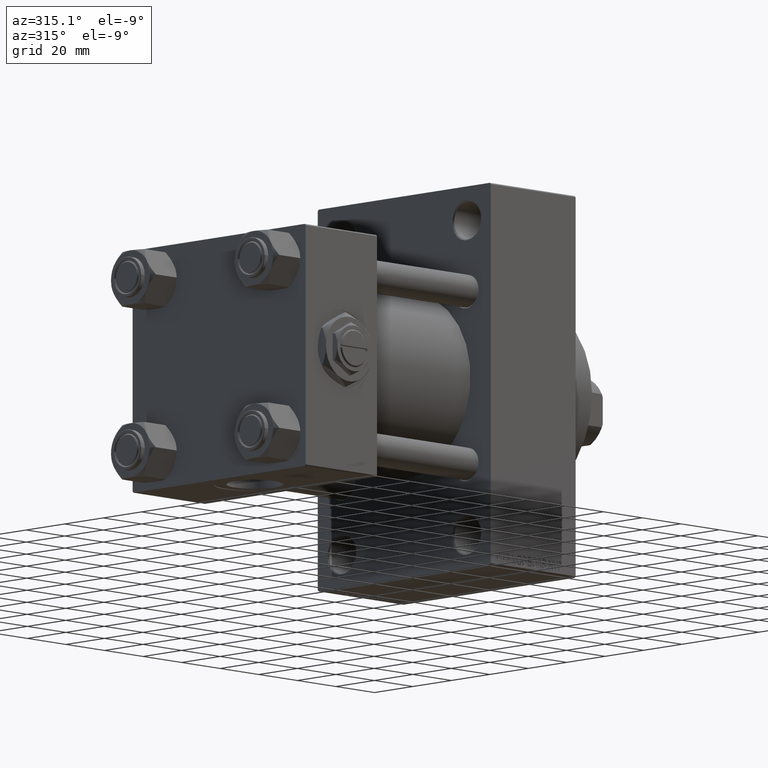
[diagram: clean part render]
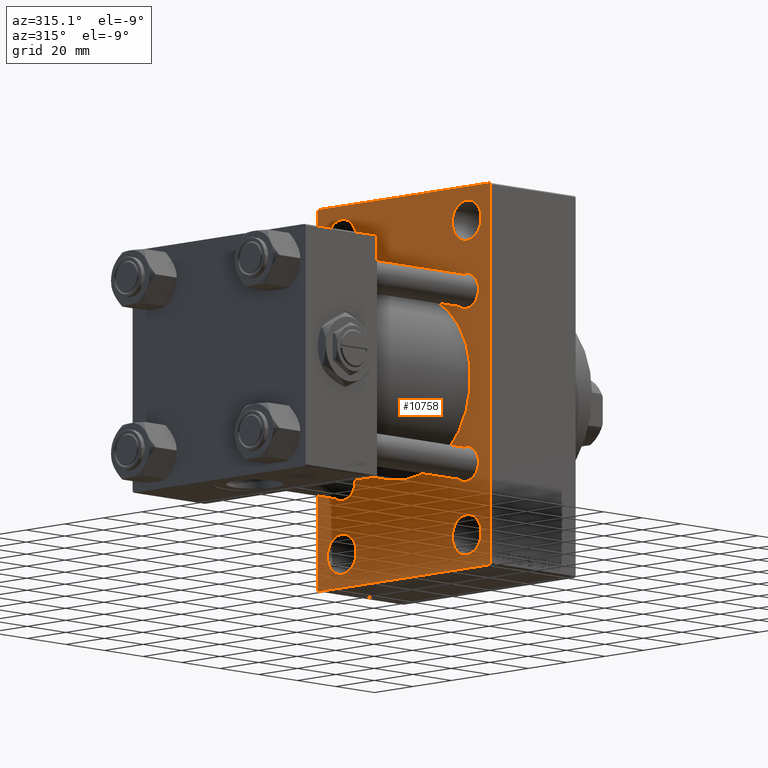
[diagram: same view with one face highlighted and labeled with its STEP entity id]
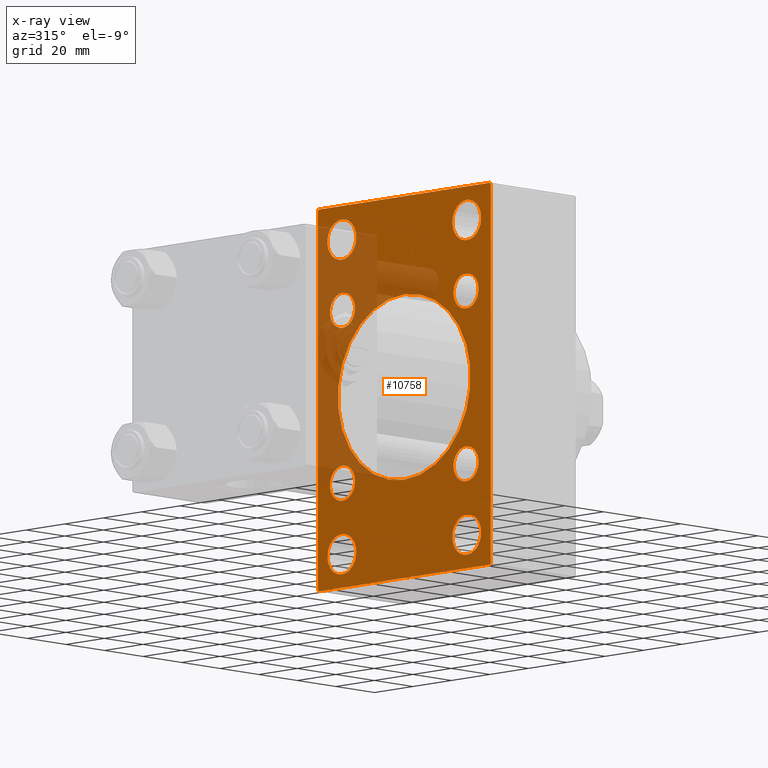
[diagram: x-ray of the same camera — body ghosted, the highlighted face saturated]
A machine part, auxiliary view. The second image highlights one B-rep face of the part: STEP entity #10758.
The next image is the same camera in x-ray: the body ghosted, the highlighted face saturated — about 26% of this face is hidden behind the body in this view.
In plain terms, the highlighted planar face has unit normal (-1, 0, 0).
Its self-contained STEP definition (entity closure, byte-faithful):
#132 = ORIENTED_EDGE ( 'NONE', *, *, #44454, .T. ) ;
#135 = ORIENTED_EDGE ( 'NONE', *, *, #44909, .T. ) ;
#208 = AXIS2_PLACEMENT_3D ( 'NONE', #8455, #34711, #7488 ) ;
#231 = CIRCLE ( 'NONE', #38981, 6.500000000000005329 ) ;
#261 = EDGE_LOOP ( 'NONE', ( #18023, #31090 ) ) ;
#343 = DIRECTION ( 'NONE',  ( 0.000000000000000000, 0.000000000000000000, 1.000000000000000000 ) ) ;
#832 = EDGE_CURVE ( 'NONE', #44035, #2490, #6201, .T. ) ;
#880 = VERTEX_POINT ( 'NONE', #7497 ) ;
#935 = DIRECTION ( 'NONE',  ( 0.000000000000000000, 0.7071067811865474617, -0.7071067811865474617 ) ) ;
#981 = EDGE_LOOP ( 'NONE', ( #44916, #35330 ) ) ;
#1394 = CIRCLE ( 'NONE', #12482, 6.500000000000005329 ) ;
#1406 = DIRECTION ( 'NONE',  ( 0.000000000000000000, 0.000000000000000000, 1.000000000000000000 ) ) ;
#1588 = ORIENTED_EDGE ( 'NONE', *, *, #38121, .T. ) ;
#1653 = DIRECTION ( 'NONE',  ( 1.000000000000000000, -0.000000000000000000, 0.000000000000000000 ) ) ;
#1970 = CIRCLE ( 'NONE', #2754, 7.500000000000007105 ) ;
#2099 = VERTEX_POINT ( 'NONE', #10121 ) ;
#2490 = VERTEX_POINT ( 'NONE', #3111 ) ;
#2754 = AXIS2_PLACEMENT_3D ( 'NONE', #4527, #34286, #343 ) ;
#2766 = DIRECTION ( 'NONE',  ( 0.000000000000000000, 0.000000000000000000, 1.000000000000000000 ) ) ;
#2769 = VERTEX_POINT ( 'NONE', #12122 ) ;
#3111 = CARTESIAN_POINT ( 'NONE',  ( 96.00000000000000000, 32.14999999999999147, 25.65000000000000213 ) ) ;
#3188 = CARTESIAN_POINT ( 'NONE',  ( 96.00000000000000000, 32.50000000000000711, 58.50000000000000711 ) ) ;
#3309 = VERTEX_POINT ( 'NONE', #18356 ) ;
#3316 = CARTESIAN_POINT ( 'NONE',  ( 96.00000000000000000, 45.00000000000001421, -70.99999999999998579 ) ) ;
#3902 = ORIENTED_EDGE ( 'NONE', *, *, #6227, .T. ) ;
#4378 = VERTEX_POINT ( 'NONE', #46128 ) ;
#4406 = EDGE_LOOP ( 'NONE', ( #135, #48329 ) ) ;
#4477 = FACE_BOUND ( 'NONE', #261, .T. ) ;
#4527 = CARTESIAN_POINT ( 'NONE',  ( 96.00000000000000000, 32.50000000000000711, -58.50000000000000000 ) ) ;
#4605 = VECTOR ( 'NONE', #6442, 1000.000000000000000 ) ;
#4932 = CARTESIAN_POINT ( 'NONE',  ( 96.00000000000000000, -32.50000000000000000, 65.99999999999998579 ) ) ;
#5305 = EDGE_CURVE ( 'NONE', #47729, #38037, #30096, .T. ) ;
#6050 = ORIENTED_EDGE ( 'NONE', *, *, #27013, .T. ) ;
#6201 = CIRCLE ( 'NONE', #15718, 6.499999999999999112 ) ;
#6227 = EDGE_CURVE ( 'NONE', #2099, #13571, #48318, .T. ) ;
#6442 = DIRECTION ( 'NONE',  ( -0.000000000000000000, 0.7071067811865426878, 0.7071067811865524577 ) ) ;
#6792 = DIRECTION ( 'NONE',  ( 0.000000000000000000, -1.000000000000000000, -1.541976423090495633E-16 ) ) ;
#6908 = CARTESIAN_POINT ( 'NONE',  ( 96.00000000000000000, 32.14999999999999147, -32.15000000000000568 ) ) ;
#6909 = DIRECTION ( 'NONE',  ( 0.000000000000000000, 0.000000000000000000, 1.000000000000000000 ) ) ;
#7155 = DIRECTION ( 'NONE',  ( 1.000000000000000000, -0.000000000000000000, 0.000000000000000000 ) ) ;
#7251 = DIRECTION ( 'NONE',  ( -0.000000000000000000, -0.7071067811865574537, -0.7071067811865376918 ) ) ;
#7446 = DIRECTION ( 'NONE',  ( 1.000000000000000000, 0.000000000000000000, 0.000000000000000000 ) ) ;
#7488 = DIRECTION ( 'NONE',  ( -0.000000000000000000, 0.000000000000000000, 1.000000000000000000 ) ) ;
#7497 = CARTESIAN_POINT ( 'NONE',  ( 96.00000000000000000, -44.49999999999994316, -71.00000000000000000 ) ) ;
#7523 = DIRECTION ( 'NONE',  ( 0.000000000000000000, 0.000000000000000000, -1.000000000000000000 ) ) ;
#7821 = EDGE_CURVE ( 'NONE', #2490, #44035, #17519, .T. ) ;
#7885 = DIRECTION ( 'NONE',  ( 1.000000000000000000, -0.000000000000000000, 0.000000000000000000 ) ) ;
#7917 = AXIS2_PLACEMENT_3D ( 'NONE', #29712, #44836, #10888 ) ;
#8241 = LINE ( 'NONE', #26360, #45772 ) ;
#8327 = ORIENTED_EDGE ( 'NONE', *, *, #7821, .T. ) ;
#8455 = CARTESIAN_POINT ( 'NONE',  ( 96.00000000000000000, 0.000000000000000000, 0.000000000000000000 ) ) ;
#8474 = CARTESIAN_POINT ( 'NONE',  ( 96.00000000000000000, 32.14999999999999147, 38.65000000000001279 ) ) ;
#8550 = EDGE_LOOP ( 'NONE', ( #3902, #28423 ) ) ;
#9028 = CARTESIAN_POINT ( 'NONE',  ( 96.00000000000000000, -2.602085213965210642E-15, 0.000000000000000000 ) ) ;
#9141 = CARTESIAN_POINT ( 'NONE',  ( 96.00000000000000000, -57.74999999999937472, -57.75000000000096634 ) ) ;
#9177 = DIRECTION ( 'NONE',  ( 1.000000000000000000, -0.000000000000000000, 0.000000000000000000 ) ) ;
#9411 = EDGE_CURVE ( 'NONE', #15888, #880, #17730, .T. ) ;
#9414 = LINE ( 'NONE', #16623, #44545 ) ;
#9653 = CIRCLE ( 'NONE', #42102, 7.500000000000007105 ) ;
#9753 = DIRECTION ( 'NONE',  ( 0.000000000000000000, 0.000000000000000000, 1.000000000000000000 ) ) ;
#9834 = DIRECTION ( 'NONE',  ( 1.000000000000000000, -0.000000000000000000, 0.000000000000000000 ) ) ;
#10121 = CARTESIAN_POINT ( 'NONE',  ( 96.00000000000000000, -32.50000000000000000, -51.00000000000000711 ) ) ;
#10122 = ORIENTED_EDGE ( 'NONE', *, *, #43942, .T. ) ;
#10244 = CARTESIAN_POINT ( 'NONE',  ( 96.00000000000000000, 32.14999999999999147, -38.65000000000001279 ) ) ;
#10318 = CARTESIAN_POINT ( 'NONE',  ( 96.00000000000000000, 32.50000000000000711, 51.00000000000002842 ) ) ;
#10375 = DIRECTION ( 'NONE',  ( 1.000000000000000000, -0.000000000000000000, 0.000000000000000000 ) ) ;
#10523 = ORIENTED_EDGE ( 'NONE', *, *, #38941, .F. ) ;
#10562 = ORIENTED_EDGE ( 'NONE', *, *, #10819, .T. ) ;
#10758 = ADVANCED_FACE ( 'NONE', ( #11939, #45405, #12429, #11703, #4477, #46359, #15422, #27287, #30272, #19623 ), #34478, .T. ) ;
#10819 = EDGE_CURVE ( 'NONE', #27139, #20338, #9414, .T. ) ;
#10888 = DIRECTION ( 'NONE',  ( 0.000000000000000000, 0.000000000000000000, 1.000000000000000000 ) ) ;
#11581 = AXIS2_PLACEMENT_3D ( 'NONE', #6908, #40878, #43853 ) ;
#11615 = CIRCLE ( 'NONE', #15580, 6.500000000000005329 ) ;
#11703 = FACE_BOUND ( 'NONE', #29751, .T. ) ;
#11939 = FACE_BOUND ( 'NONE', #981, .T. ) ;
#12122 = CARTESIAN_POINT ( 'NONE',  ( 96.00000000000000000, -44.99999999999997158, -70.50000000000000000 ) ) ;
#12429 = FACE_BOUND ( 'NONE', #21305, .T. ) ;
#12482 = AXIS2_PLACEMENT_3D ( 'NONE', #40221, #25363, #9753 ) ;
#12725 = CARTESIAN_POINT ( 'NONE',  ( 96.00000000000000000, 32.50000000000000711, 65.99999999999998579 ) ) ;
#13233 = CARTESIAN_POINT ( 'NONE',  ( 96.00000000000000000, -32.14999999999997726, 25.65000000000000213 ) ) ;
#13286 = EDGE_CURVE ( 'NONE', #13571, #2099, #23927, .T. ) ;
#13554 = VERTEX_POINT ( 'NONE', #10318 ) ;
#13571 = VERTEX_POINT ( 'NONE', #39543 ) ;
#14349 = CARTESIAN_POINT ( 'NONE',  ( 96.00000000000000000, -32.14999999999997726, 32.15000000000001279 ) ) ;
#14412 = CARTESIAN_POINT ( 'NONE',  ( 96.00000000000000000, -57.75000000000028422, 57.74999999999948841 ) ) ;
#14752 = ORIENTED_EDGE ( 'NONE', *, *, #19308, .T. ) ;
#14957 = CARTESIAN_POINT ( 'NONE',  ( 96.00000000000000000, 57.74999999999938893, -57.75000000000100187 ) ) ;
#15016 = DIRECTION ( 'NONE',  ( 0.000000000000000000, -1.000000000000000000, -1.541976423090495387E-16 ) ) ;
#15270 = VERTEX_POINT ( 'NONE', #22329 ) ;
#15422 = FACE_BOUND ( 'NONE', #35337, .T. ) ;
#15580 = AXIS2_PLACEMENT_3D ( 'NONE', #23497, #1653, #19784 ) ;
#15718 = AXIS2_PLACEMENT_3D ( 'NONE', #26574, #22374, #34488 ) ;
#15888 = VERTEX_POINT ( 'NONE', #27318 ) ;
#16409 = DIRECTION ( 'NONE',  ( 1.000000000000000000, -0.000000000000000000, 0.000000000000000000 ) ) ;
#16623 = CARTESIAN_POINT ( 'NONE',  ( 96.00000000000000000, 45.00000000000002132, 71.00000000000000000 ) ) ;
#16662 = EDGE_CURVE ( 'NONE', #22694, #25323, #30982, .T. ) ;
#16917 = ORIENTED_EDGE ( 'NONE', *, *, #5305, .T. ) ;
#16963 = DIRECTION ( 'NONE',  ( 1.000000000000000000, 0.000000000000000000, 0.000000000000000000 ) ) ;
#17132 = VERTEX_POINT ( 'NONE', #34716 ) ;
#17519 = CIRCLE ( 'NONE', #19116, 6.499999999999999112 ) ;
#17641 = CIRCLE ( 'NONE', #45335, 34.50000000000000000 ) ;
#17730 = LINE ( 'NONE', #3316, #23128 ) ;
#18023 = ORIENTED_EDGE ( 'NONE', *, *, #46955, .T. ) ;
#18356 = CARTESIAN_POINT ( 'NONE',  ( 96.00000000000000000, -32.14999999999997726, -25.65000000000000568 ) ) ;
#18919 = LINE ( 'NONE', #14957, #46071 ) ;
#18992 = EDGE_CURVE ( 'NONE', #25323, #22694, #43722, .T. ) ;
#19116 = AXIS2_PLACEMENT_3D ( 'NONE', #31634, #9834, #1406 ) ;
#19308 = EDGE_CURVE ( 'NONE', #15270, #44573, #17641, .T. ) ;
#19532 = CARTESIAN_POINT ( 'NONE',  ( 96.00000000000000000, -2.602085213965210642E-15, 34.50000000000000000 ) ) ;
#19623 = FACE_OUTER_BOUND ( 'NONE', #43349, .T. ) ;
#19740 = CIRCLE ( 'NONE', #34752, 34.50000000000000000 ) ;
#19784 = DIRECTION ( 'NONE',  ( 0.000000000000000000, 0.000000000000000000, 1.000000000000000000 ) ) ;
#20111 = CARTESIAN_POINT ( 'NONE',  ( 96.00000000000000000, -32.50000000000000000, 51.00000000000002842 ) ) ;
#20152 = CARTESIAN_POINT ( 'NONE',  ( 96.00000000000000000, 45.00000000000002132, 70.50000000000000000 ) ) ;
#20170 = CARTESIAN_POINT ( 'NONE',  ( 96.00000000000000000, 44.50000000000002132, 71.00000000000000000 ) ) ;
#20338 = VERTEX_POINT ( 'NONE', #34629 ) ;
#20517 = DIRECTION ( 'NONE',  ( 0.000000000000000000, 0.000000000000000000, 1.000000000000000000 ) ) ;
#20831 = DIRECTION ( 'NONE',  ( 0.000000000000000000, -4.886545002751570165E-17, -1.000000000000000000 ) ) ;
#20875 = DIRECTION ( 'NONE',  ( 1.000000000000000000, -0.000000000000000000, 0.000000000000000000 ) ) ;
#20956 = EDGE_CURVE ( 'NONE', #25135, #17132, #9653, .T. ) ;
#21305 = EDGE_LOOP ( 'NONE', ( #6050, #47256 ) ) ;
#21531 = DIRECTION ( 'NONE',  ( 0.000000000000000000, 0.000000000000000000, 1.000000000000000000 ) ) ;
#21620 = CARTESIAN_POINT ( 'NONE',  ( 96.00000000000000000, -32.50000000000000000, -58.49999999999999289 ) ) ;
#21911 = DIRECTION ( 'NONE',  ( 1.000000000000000000, -0.000000000000000000, 0.000000000000000000 ) ) ;
#22329 = CARTESIAN_POINT ( 'NONE',  ( 96.00000000000000000, 1.622946243093158675E-15, -34.50000000000000000 ) ) ;
#22374 = DIRECTION ( 'NONE',  ( 1.000000000000000000, -0.000000000000000000, 0.000000000000000000 ) ) ;
#22465 = AXIS2_PLACEMENT_3D ( 'NONE', #14349, #36365, #29442 ) ;
#22694 = VERTEX_POINT ( 'NONE', #20111 ) ;
#23128 = VECTOR ( 'NONE', #6792, 1000.000000000000000 ) ;
#23497 = CARTESIAN_POINT ( 'NONE',  ( 96.00000000000000000, -32.14999999999997726, -32.15000000000001279 ) ) ;
#23927 = CIRCLE ( 'NONE', #45429, 7.499999999999985789 ) ;
#24263 = DIRECTION ( 'NONE',  ( 0.000000000000000000, -0.7071067811865573427, 0.7071067811865378028 ) ) ;
#25135 = VERTEX_POINT ( 'NONE', #48352 ) ;
#25323 = VERTEX_POINT ( 'NONE', #4932 ) ;
#25363 = DIRECTION ( 'NONE',  ( 1.000000000000000000, -0.000000000000000000, 0.000000000000000000 ) ) ;
#25559 = VECTOR ( 'NONE', #24263, 1000.000000000000000 ) ;
#25764 = AXIS2_PLACEMENT_3D ( 'NONE', #30776, #16409, #46622 ) ;
#26276 = DIRECTION ( 'NONE',  ( 0.000000000000000000, 0.000000000000000000, -1.000000000000000000 ) ) ;
#26335 = AXIS2_PLACEMENT_3D ( 'NONE', #40483, #21911, #37002 ) ;
#26360 = CARTESIAN_POINT ( 'NONE',  ( 96.00000000000000000, -44.99999999999997158, 70.99999999999998579 ) ) ;
#26448 = EDGE_CURVE ( 'NONE', #42837, #27139, #42801, .T. ) ;
#26574 = CARTESIAN_POINT ( 'NONE',  ( 96.00000000000000000, 32.14999999999999147, 32.15000000000000568 ) ) ;
#26723 = DIRECTION ( 'NONE',  ( 0.000000000000000000, 0.000000000000000000, 1.000000000000000000 ) ) ;
#27013 = EDGE_CURVE ( 'NONE', #17132, #25135, #1970, .T. ) ;
#27085 = ORIENTED_EDGE ( 'NONE', *, *, #33776, .T. ) ;
#27139 = VERTEX_POINT ( 'NONE', #20152 ) ;
#27287 = FACE_BOUND ( 'NONE', #4406, .T. ) ;
#27318 = CARTESIAN_POINT ( 'NONE',  ( 96.00000000000000000, 44.50000000000004263, -70.99999999999998579 ) ) ;
#27376 = DIRECTION ( 'NONE',  ( 0.000000000000000000, 0.000000000000000000, -1.000000000000000000 ) ) ;
#27693 = EDGE_CURVE ( 'NONE', #41922, #13554, #39181, .T. ) ;
#28005 = CARTESIAN_POINT ( 'NONE',  ( 96.00000000000000000, -32.14999999999997726, -32.15000000000001279 ) ) ;
#28187 = CARTESIAN_POINT ( 'NONE',  ( 96.00000000000000000, -32.50000000000000000, 58.50000000000000711 ) ) ;
#28423 = ORIENTED_EDGE ( 'NONE', *, *, #13286, .T. ) ;
#28707 = LINE ( 'NONE', #9141, #25559 ) ;
#28751 = CARTESIAN_POINT ( 'NONE',  ( 96.00000000000000000, -44.49999999999995026, 70.99999999999998579 ) ) ;
#29442 = DIRECTION ( 'NONE',  ( 0.000000000000000000, 0.000000000000000000, 1.000000000000000000 ) ) ;
#29504 = CARTESIAN_POINT ( 'NONE',  ( 96.00000000000000000, -2.602085213965210642E-15, 0.000000000000000000 ) ) ;
#29712 = CARTESIAN_POINT ( 'NONE',  ( 96.00000000000000000, 32.14999999999999147, -32.15000000000000568 ) ) ;
#29751 = EDGE_LOOP ( 'NONE', ( #36081, #36832 ) ) ;
#30096 = CIRCLE ( 'NONE', #7917, 6.500000000000005329 ) ;
#30272 = FACE_BOUND ( 'NONE', #32148, .T. ) ;
#30669 = CARTESIAN_POINT ( 'NONE',  ( 96.00000000000000000, -32.14999999999997726, -38.65000000000001990 ) ) ;
#30776 = CARTESIAN_POINT ( 'NONE',  ( 96.00000000000000000, 32.50000000000000711, 58.50000000000000711 ) ) ;
#30982 = CIRCLE ( 'NONE', #41298, 7.499999999999978684 ) ;
#31090 = ORIENTED_EDGE ( 'NONE', *, *, #37798, .T. ) ;
#31634 = CARTESIAN_POINT ( 'NONE',  ( 96.00000000000000000, 32.14999999999999147, 32.15000000000000568 ) ) ;
#32148 = EDGE_LOOP ( 'NONE', ( #44465, #14752 ) ) ;
#32573 = ORIENTED_EDGE ( 'NONE', *, *, #832, .T. ) ;
#33776 = EDGE_CURVE ( 'NONE', #38037, #47729, #36063, .T. ) ;
#33866 = VERTEX_POINT ( 'NONE', #30669 ) ;
#33946 = EDGE_CURVE ( 'NONE', #13554, #41922, #46363, .T. ) ;
#34112 = EDGE_CURVE ( 'NONE', #33866, #3309, #11615, .T. ) ;
#34158 = CARTESIAN_POINT ( 'NONE',  ( 96.00000000000000000, 32.50000000000000711, -58.50000000000000000 ) ) ;
#34217 = CIRCLE ( 'NONE', #22465, 6.500000000000005329 ) ;
#34286 = DIRECTION ( 'NONE',  ( 1.000000000000000000, -0.000000000000000000, 0.000000000000000000 ) ) ;
#34478 = PLANE ( 'NONE',  #208 ) ;
#34488 = DIRECTION ( 'NONE',  ( 0.000000000000000000, 0.000000000000000000, 1.000000000000000000 ) ) ;
#34629 = CARTESIAN_POINT ( 'NONE',  ( 96.00000000000000000, 45.00000000000001421, -70.50000000000001421 ) ) ;
#34711 = DIRECTION ( 'NONE',  ( -1.000000000000000000, 0.000000000000000000, -0.000000000000000000 ) ) ;
#34716 = CARTESIAN_POINT ( 'NONE',  ( 96.00000000000000000, 32.50000000000000711, -50.99999999999999289 ) ) ;
#34752 = AXIS2_PLACEMENT_3D ( 'NONE', #29504, #7446, #26276 ) ;
#35330 = ORIENTED_EDGE ( 'NONE', *, *, #16662, .T. ) ;
#35337 = EDGE_LOOP ( 'NONE', ( #27085, #16917 ) ) ;
#36063 = CIRCLE ( 'NONE', #11581, 6.500000000000005329 ) ;
#36081 = ORIENTED_EDGE ( 'NONE', *, *, #27693, .T. ) ;
#36365 = DIRECTION ( 'NONE',  ( 1.000000000000000000, -0.000000000000000000, 0.000000000000000000 ) ) ;
#36832 = ORIENTED_EDGE ( 'NONE', *, *, #33946, .T. ) ;
#37002 = DIRECTION ( 'NONE',  ( 0.000000000000000000, 0.000000000000000000, 1.000000000000000000 ) ) ;
#37303 = ORIENTED_EDGE ( 'NONE', *, *, #26448, .T. ) ;
#37378 = EDGE_LOOP ( 'NONE', ( #32573, #8327 ) ) ;
#37665 = AXIS2_PLACEMENT_3D ( 'NONE', #3188, #7885, #26723 ) ;
#37682 = EDGE_CURVE ( 'NONE', #42837, #45745, #41525, .T. ) ;
#37798 = EDGE_CURVE ( 'NONE', #43864, #4378, #1394, .T. ) ;
#38016 = ORIENTED_EDGE ( 'NONE', *, *, #37682, .F. ) ;
#38037 = VERTEX_POINT ( 'NONE', #39183 ) ;
#38121 = EDGE_CURVE ( 'NONE', #47785, #45745, #40674, .T. ) ;
#38941 = EDGE_CURVE ( 'NONE', #47785, #2769, #8241, .T. ) ;
#38981 = AXIS2_PLACEMENT_3D ( 'NONE', #28005, #9177, #46360 ) ;
#39181 = CIRCLE ( 'NONE', #25764, 7.499999999999978684 ) ;
#39183 = CARTESIAN_POINT ( 'NONE',  ( 96.00000000000000000, 32.14999999999999147, -25.64999999999999858 ) ) ;
#39543 = CARTESIAN_POINT ( 'NONE',  ( 96.00000000000000000, -32.50000000000000000, -65.99999999999997158 ) ) ;
#40077 = DIRECTION ( 'NONE',  ( 1.000000000000000000, -0.000000000000000000, 0.000000000000000000 ) ) ;
#40221 = CARTESIAN_POINT ( 'NONE',  ( 96.00000000000000000, -32.14999999999997726, 32.15000000000001279 ) ) ;
#40483 = CARTESIAN_POINT ( 'NONE',  ( 96.00000000000000000, -32.50000000000000000, 58.50000000000000711 ) ) ;
#40674 = LINE ( 'NONE', #14412, #4605 ) ;
#40679 = EDGE_CURVE ( 'NONE', #44573, #15270, #19740, .T. ) ;
#40878 = DIRECTION ( 'NONE',  ( 1.000000000000000000, -0.000000000000000000, 0.000000000000000000 ) ) ;
#41298 = AXIS2_PLACEMENT_3D ( 'NONE', #28187, #40077, #20517 ) ;
#41525 = LINE ( 'NONE', #48953, #43345 ) ;
#41922 = VERTEX_POINT ( 'NONE', #12725 ) ;
#42102 = AXIS2_PLACEMENT_3D ( 'NONE', #34158, #7155, #6909 ) ;
#42801 = LINE ( 'NONE', #45807, #46241 ) ;
#42837 = VERTEX_POINT ( 'NONE', #20170 ) ;
#43198 = CARTESIAN_POINT ( 'NONE',  ( 96.00000000000000000, -44.99999999999997158, 70.49999999999998579 ) ) ;
#43345 = VECTOR ( 'NONE', #15016, 1000.000000000000000 ) ;
#43349 = EDGE_LOOP ( 'NONE', ( #45521, #132, #10523, #1588, #38016, #37303, #10562, #10122 ) ) ;
#43722 = CIRCLE ( 'NONE', #26335, 7.499999999999978684 ) ;
#43853 = DIRECTION ( 'NONE',  ( 0.000000000000000000, 0.000000000000000000, 1.000000000000000000 ) ) ;
#43864 = VERTEX_POINT ( 'NONE', #13233 ) ;
#43942 = EDGE_CURVE ( 'NONE', #20338, #15888, #18919, .T. ) ;
#44035 = VERTEX_POINT ( 'NONE', #8474 ) ;
#44454 = EDGE_CURVE ( 'NONE', #880, #2769, #28707, .T. ) ;
#44465 = ORIENTED_EDGE ( 'NONE', *, *, #40679, .T. ) ;
#44545 = VECTOR ( 'NONE', #20831, 1000.000000000000000 ) ;
#44573 = VERTEX_POINT ( 'NONE', #19532 ) ;
#44836 = DIRECTION ( 'NONE',  ( 1.000000000000000000, -0.000000000000000000, 0.000000000000000000 ) ) ;
#44909 = EDGE_CURVE ( 'NONE', #3309, #33866, #231, .T. ) ;
#44916 = ORIENTED_EDGE ( 'NONE', *, *, #18992, .T. ) ;
#45335 = AXIS2_PLACEMENT_3D ( 'NONE', #9028, #16963, #27376 ) ;
#45405 = FACE_BOUND ( 'NONE', #8550, .T. ) ;
#45429 = AXIS2_PLACEMENT_3D ( 'NONE', #48039, #10375, #21531 ) ;
#45521 = ORIENTED_EDGE ( 'NONE', *, *, #9411, .T. ) ;
#45745 = VERTEX_POINT ( 'NONE', #28751 ) ;
#45772 = VECTOR ( 'NONE', #7523, 1000.000000000000000 ) ;
#45807 = CARTESIAN_POINT ( 'NONE',  ( 96.00000000000000000, 57.75000000000000000, 57.75000000000000000 ) ) ;
#46071 = VECTOR ( 'NONE', #7251, 999.9999999999998863 ) ;
#46128 = CARTESIAN_POINT ( 'NONE',  ( 96.00000000000000000, -32.14999999999997726, 38.65000000000002700 ) ) ;
#46241 = VECTOR ( 'NONE', #935, 1000.000000000000114 ) ;
#46359 = FACE_BOUND ( 'NONE', #37378, .T. ) ;
#46360 = DIRECTION ( 'NONE',  ( 0.000000000000000000, 0.000000000000000000, 1.000000000000000000 ) ) ;
#46363 = CIRCLE ( 'NONE', #37665, 7.499999999999978684 ) ;
#46622 = DIRECTION ( 'NONE',  ( 0.000000000000000000, 0.000000000000000000, 1.000000000000000000 ) ) ;
#46955 = EDGE_CURVE ( 'NONE', #4378, #43864, #34217, .T. ) ;
#47256 = ORIENTED_EDGE ( 'NONE', *, *, #20956, .T. ) ;
#47525 = AXIS2_PLACEMENT_3D ( 'NONE', #21620, #20875, #2766 ) ;
#47729 = VERTEX_POINT ( 'NONE', #10244 ) ;
#47785 = VERTEX_POINT ( 'NONE', #43198 ) ;
#48039 = CARTESIAN_POINT ( 'NONE',  ( 96.00000000000000000, -32.50000000000000000, -58.49999999999999289 ) ) ;
#48318 = CIRCLE ( 'NONE', #47525, 7.499999999999985789 ) ;
#48329 = ORIENTED_EDGE ( 'NONE', *, *, #34112, .T. ) ;
#48352 = CARTESIAN_POINT ( 'NONE',  ( 96.00000000000000000, 32.50000000000000711, -66.00000000000000000 ) ) ;
#48953 = CARTESIAN_POINT ( 'NONE',  ( 96.00000000000000000, 45.00000000000002132, 71.00000000000000000 ) ) ;